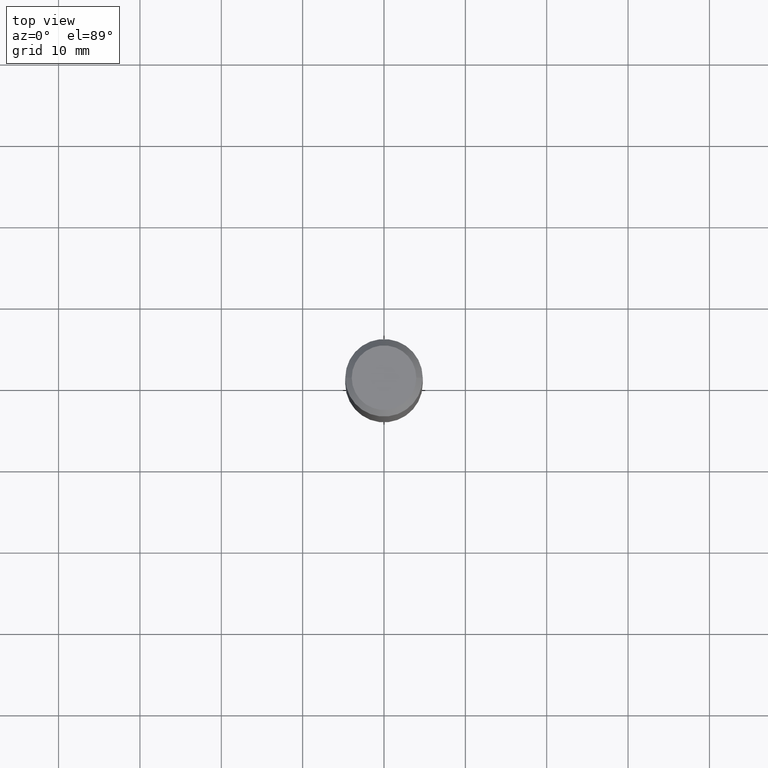
[diagram: clean part render]
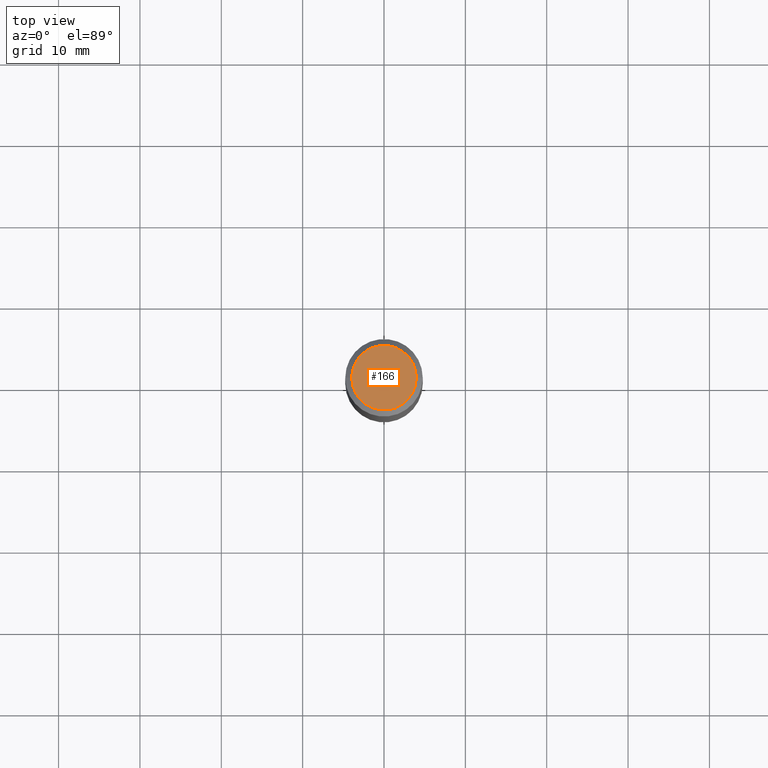
[diagram: same view with one face highlighted and labeled with its STEP entity id]
A machine part, top view. The second image highlights one B-rep face of the part: STEP entity #166.
In plain terms, the highlighted planar face has unit normal (0, -0, -1).
Its self-contained STEP definition (entity closure, byte-faithful):
#8 = CARTESIAN_POINT ( 'NONE',  ( -0.1562500000000006661, 1.145642314307903724E-15, -8.065453072484580114E-16 ) ) ;
#14 = CIRCLE ( 'NONE', #189, 0.1562500000000006661 ) ;
#25 = ORIENTED_EDGE ( 'NONE', *, *, #275, .T. ) ;
#56 = PLANE ( 'NONE',  #295 ) ;
#82 = CARTESIAN_POINT ( 'NONE',  ( 0.1562500000000006661, -1.233702489286409693E-15, -8.065453072484421356E-16 ) ) ;
#92 = VERTEX_POINT ( 'NONE', #8 ) ;
#95 = CARTESIAN_POINT ( 'NONE',  ( 9.861906948255459936E-45, -1.408018944594737599E-30, -4.032726536242251107E-16 ) ) ;
#100 = CIRCLE ( 'NONE', #335, 0.1562500000000006661 ) ;
#122 = ORIENTED_EDGE ( 'NONE', *, *, #428, .T. ) ;
#129 = VERTEX_POINT ( 'NONE', #82 ) ;
#149 = CARTESIAN_POINT ( 'NONE',  ( 1.972381389651091987E-44, -2.816037889189475198E-30, -8.065453072484502214E-16 ) ) ;
#166 = ADVANCED_FACE ( 'NONE', ( #409 ), #56, .F. ) ;
#189 = AXIS2_PLACEMENT_3D ( 'NONE', #149, #258, #223 ) ;
#198 = DIRECTION ( 'NONE',  ( -1.000000000000000000, 6.982962677686265922E-15, -4.876176775795935793E-29 ) ) ;
#223 = DIRECTION ( 'NONE',  ( 1.000000000000000000, -6.982962677686265922E-15, 4.891558762689323976E-29 ) ) ;
#237 = DIRECTION ( 'NONE',  ( 1.000000000000000000, -6.982962677686265922E-15, 4.891558762689323976E-29 ) ) ;
#258 = DIRECTION ( 'NONE',  ( -2.445468806185136597E-29, 3.491481338843145583E-15, 1.000000000000000000 ) ) ;
#259 = DIRECTION ( 'NONE',  ( 2.438088387897960049E-29, -3.491481338843145188E-15, -1.000000000000000000 ) ) ;
#275 = EDGE_CURVE ( 'NONE', #92, #129, #100, .T. ) ;
#295 = AXIS2_PLACEMENT_3D ( 'NONE', #95, #259, #198 ) ;
#335 = AXIS2_PLACEMENT_3D ( 'NONE', #417, #366, #237 ) ;
#336 = EDGE_LOOP ( 'NONE', ( #25, #122 ) ) ;
#366 = DIRECTION ( 'NONE',  ( -2.445468806185136597E-29, 3.491481338843145583E-15, 1.000000000000000000 ) ) ;
#409 = FACE_OUTER_BOUND ( 'NONE', #336, .T. ) ;
#417 = CARTESIAN_POINT ( 'NONE',  ( 1.972381389651091987E-44, -2.816037889189475198E-30, -8.065453072484502214E-16 ) ) ;
#428 = EDGE_CURVE ( 'NONE', #129, #92, #14, .T. ) ;